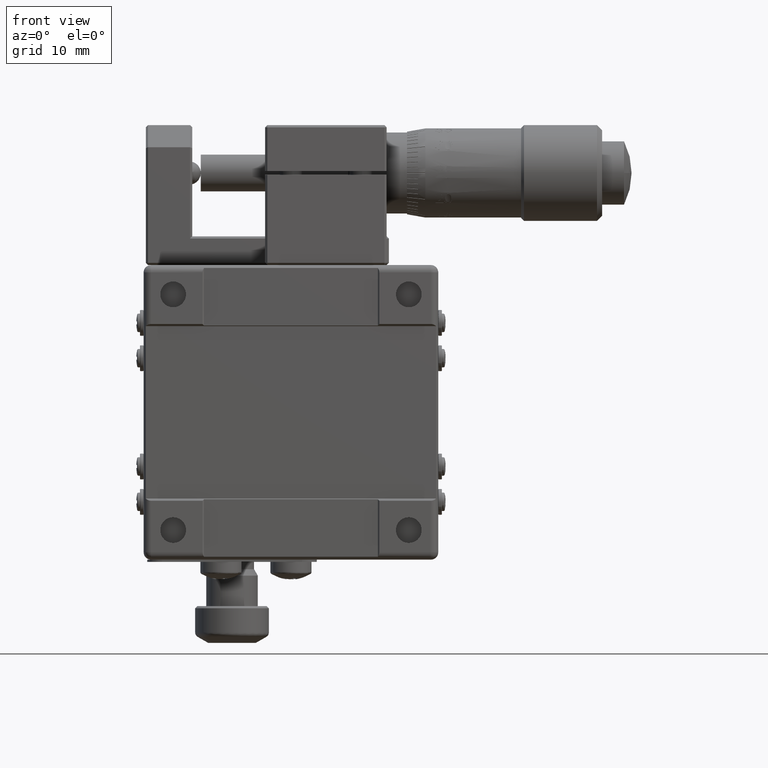
[diagram: clean part render]
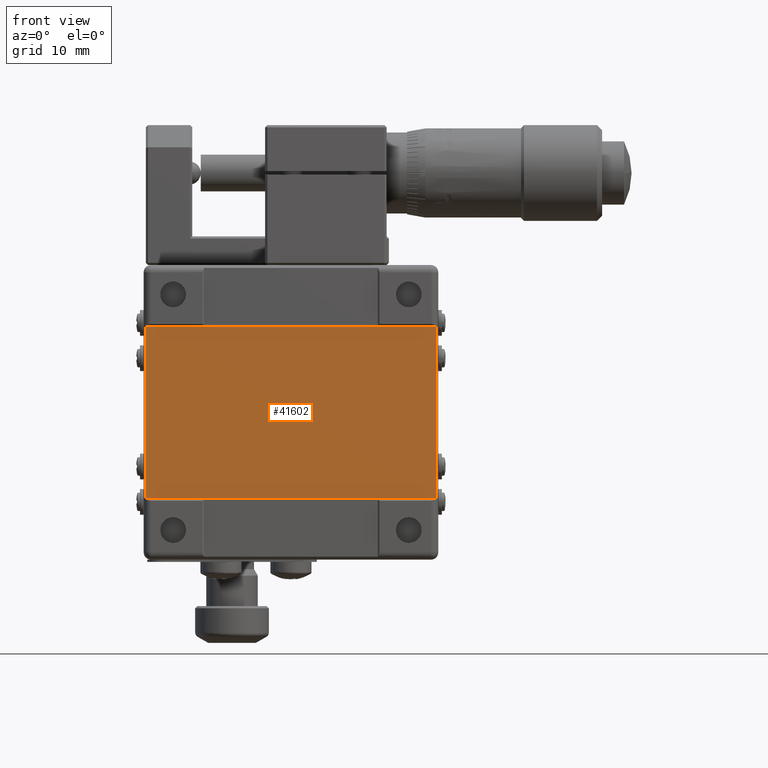
[diagram: same view with one face highlighted and labeled with its STEP entity id]
A machine part, front view. The second image highlights one B-rep face of the part: STEP entity #41602.
In plain terms, the highlighted planar face has unit normal (-0, 1, 0).
Its self-contained STEP definition (entity closure, byte-faithful):
#1597 = EDGE_CURVE ( 'NONE', #3651, #19874, #8480, .T. ) ;
#3651 = VERTEX_POINT ( 'NONE', #52365 ) ;
#6397 = EDGE_LOOP ( 'NONE', ( #49103, #31777, #56629, #48681 ) ) ;
#8295 = LINE ( 'NONE', #26124, #47973 ) ;
#8480 = LINE ( 'NONE', #57835, #19808 ) ;
#8850 = DIRECTION ( 'NONE',  ( -1.000000000000000000, 0.000000000000000000, 0.000000000000000000 ) ) ;
#9619 = VECTOR ( 'NONE', #18419, 1000.000000000000000 ) ;
#13087 = DIRECTION ( 'NONE',  ( -0.000000000000000000, 1.000000000000000000, 0.000000000000000000 ) ) ;
#17471 = DIRECTION ( 'NONE',  ( 1.000000000000000000, 0.000000000000000000, 0.000000000000000000 ) ) ;
#17915 = CARTESIAN_POINT ( 'NONE',  ( 20.37967615857065340, -6.991736460078159965, 11.70000000000000107 ) ) ;
#18419 = DIRECTION ( 'NONE',  ( 0.000000000000000000, 1.084202172485504040E-15, -1.000000000000000000 ) ) ;
#18700 = EDGE_CURVE ( 'NONE', #19874, #26397, #44768, .T. ) ;
#19171 = EDGE_CURVE ( 'NONE', #26397, #32629, #41187, .T. ) ;
#19808 = VECTOR ( 'NONE', #53757, 1000.000000000000000 ) ;
#19874 = VERTEX_POINT ( 'NONE', #28144 ) ;
#22129 = FACE_OUTER_BOUND ( 'NONE', #6397, .T. ) ;
#26124 = CARTESIAN_POINT ( 'NONE',  ( 20.37967615857065340, -6.991736460078159965, -11.70000000000000107 ) ) ;
#26397 = VERTEX_POINT ( 'NONE', #30398 ) ;
#28144 = CARTESIAN_POINT ( 'NONE',  ( 20.09381900142489741, -6.991736460078159965, 11.70000000000000107 ) ) ;
#29025 = EDGE_CURVE ( 'NONE', #3651, #32629, #8295, .T. ) ;
#30398 = CARTESIAN_POINT ( 'NONE',  ( -19.33446668428364745, -6.991736460078159965, 11.70000000000000107 ) ) ;
#31777 = ORIENTED_EDGE ( 'NONE', *, *, #1597, .T. ) ;
#32015 = VECTOR ( 'NONE', #8850, 1000.000000000000000 ) ;
#32158 = CARTESIAN_POINT ( 'NONE',  ( -19.33446668428369719, -6.991736460078159965, 11.70000000000000107 ) ) ;
#32629 = VERTEX_POINT ( 'NONE', #35971 ) ;
#35971 = CARTESIAN_POINT ( 'NONE',  ( -19.33446668428364745, -6.991736460078159965, -11.70000000000000107 ) ) ;
#38270 = AXIS2_PLACEMENT_3D ( 'NONE', #39677, #13087, #17471 ) ;
#39677 = CARTESIAN_POINT ( 'NONE',  ( 20.37967615857065340, -6.991736460078159965, 11.70000000000000107 ) ) ;
#41187 = LINE ( 'NONE', #32158, #9619 ) ;
#41602 = ADVANCED_FACE ( 'NONE', ( #22129 ), #53692, .F. ) ;
#44768 = LINE ( 'NONE', #17915, #32015 ) ;
#47973 = VECTOR ( 'NONE', #52155, 1000.000000000000000 ) ;
#48681 = ORIENTED_EDGE ( 'NONE', *, *, #19171, .T. ) ;
#49103 = ORIENTED_EDGE ( 'NONE', *, *, #29025, .F. ) ;
#52155 = DIRECTION ( 'NONE',  ( -1.000000000000000000, 0.000000000000000000, 0.000000000000000000 ) ) ;
#52365 = CARTESIAN_POINT ( 'NONE',  ( 20.09381900142495070, -6.991736460078159965, -11.70000000000000107 ) ) ;
#53692 = PLANE ( 'NONE',  #38270 ) ;
#53757 = DIRECTION ( 'NONE',  ( 0.000000000000000000, 1.084202172485504040E-15, 1.000000000000000000 ) ) ;
#56629 = ORIENTED_EDGE ( 'NONE', *, *, #18700, .T. ) ;
#57835 = CARTESIAN_POINT ( 'NONE',  ( 20.09381900142495070, -6.991736460078159965, -11.70000000000000107 ) ) ;